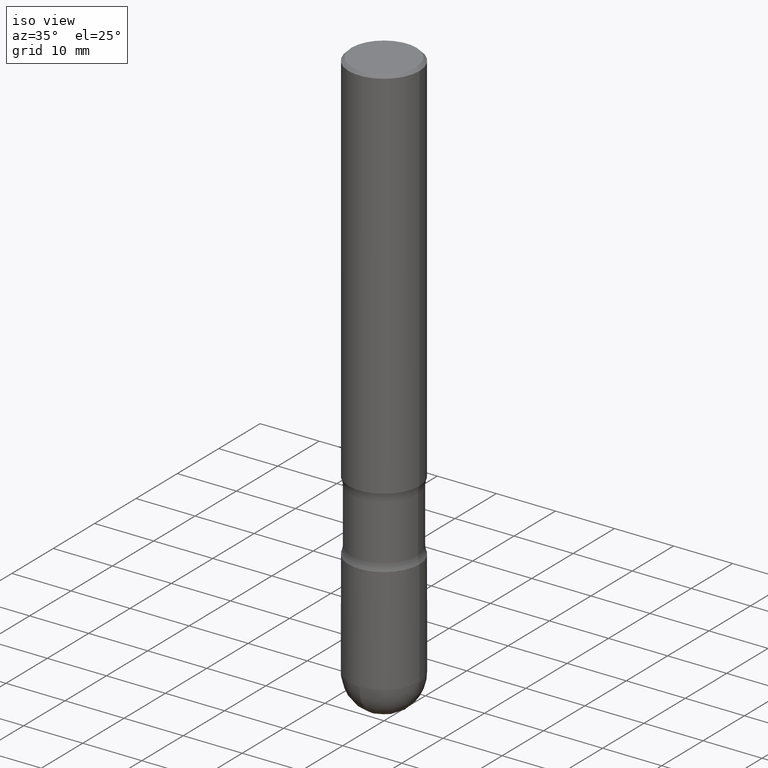
[diagram: clean part render]
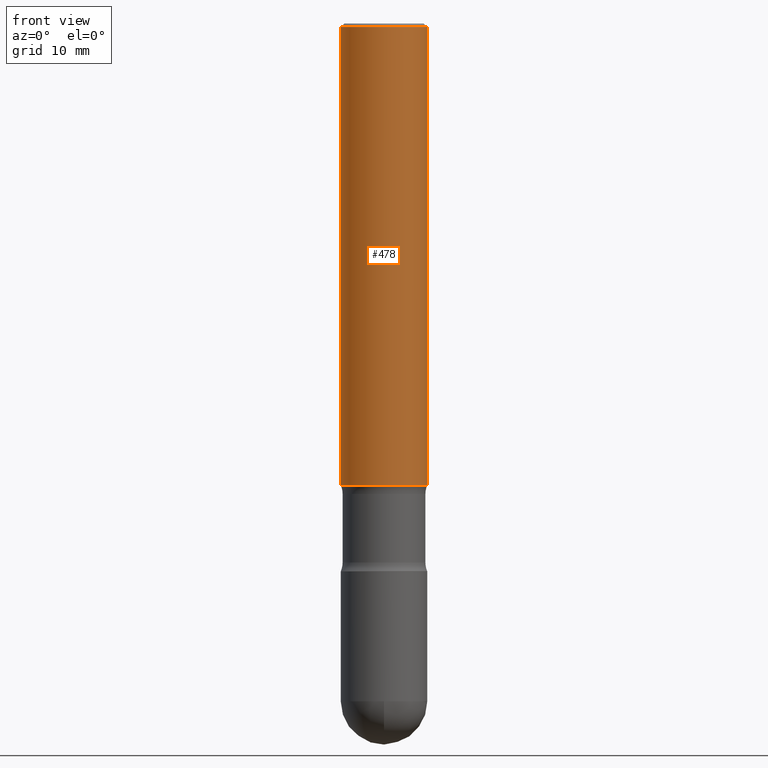
[diagram: tour spotlight — one face highlighted and labeled with its STEP entity id]
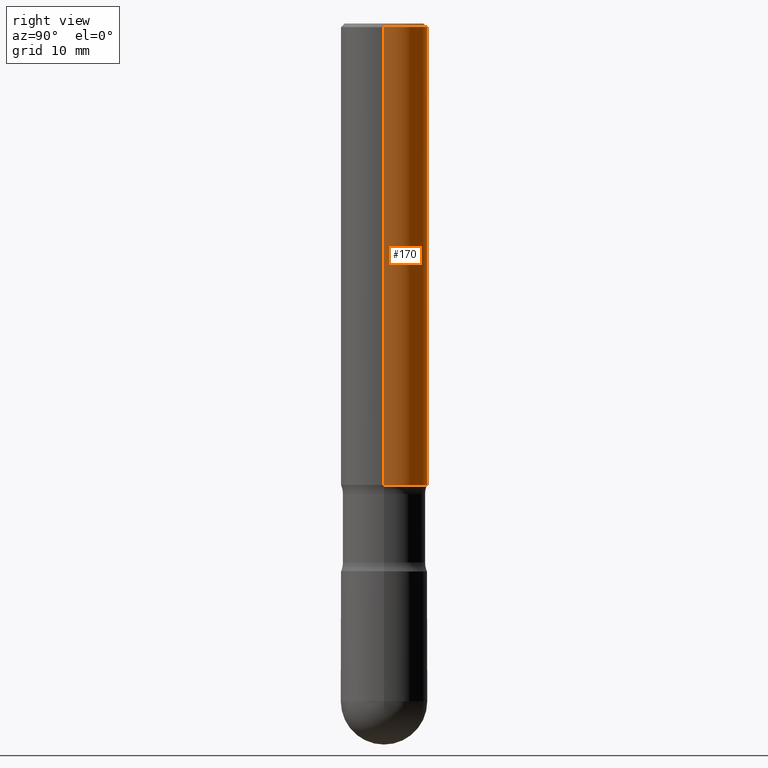
[diagram: tour spotlight — one face highlighted and labeled with its STEP entity id]
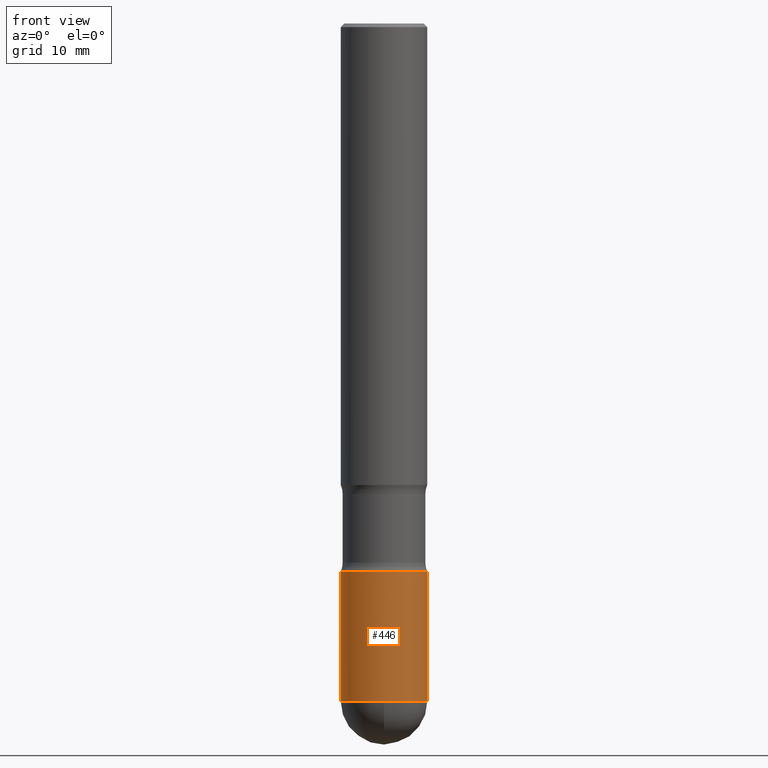
[diagram: tour spotlight — one face highlighted and labeled with its STEP entity id]
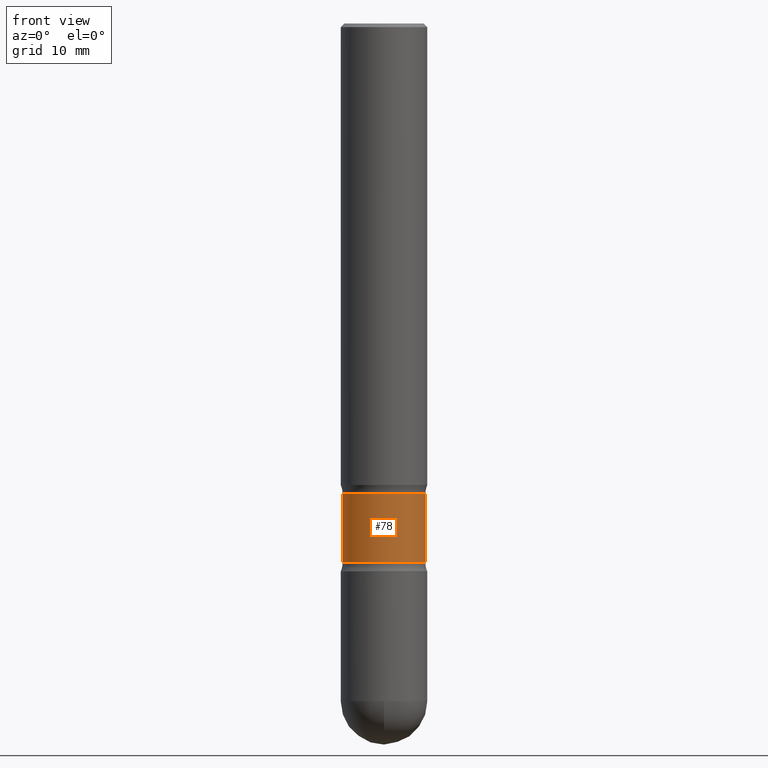
[diagram: tour spotlight — one face highlighted and labeled with its STEP entity id]
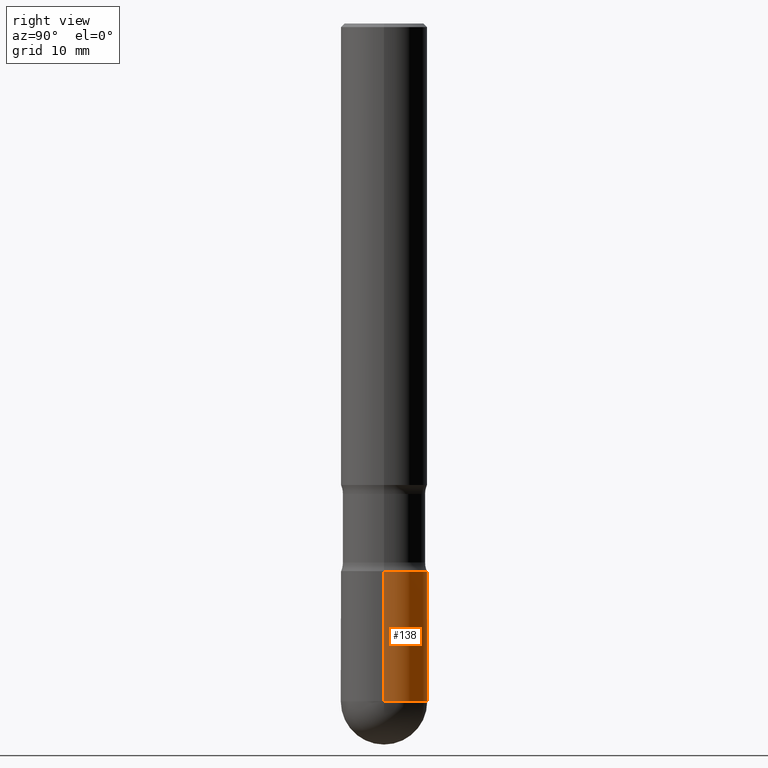
[diagram: tour spotlight — one face highlighted and labeled with its STEP entity id]
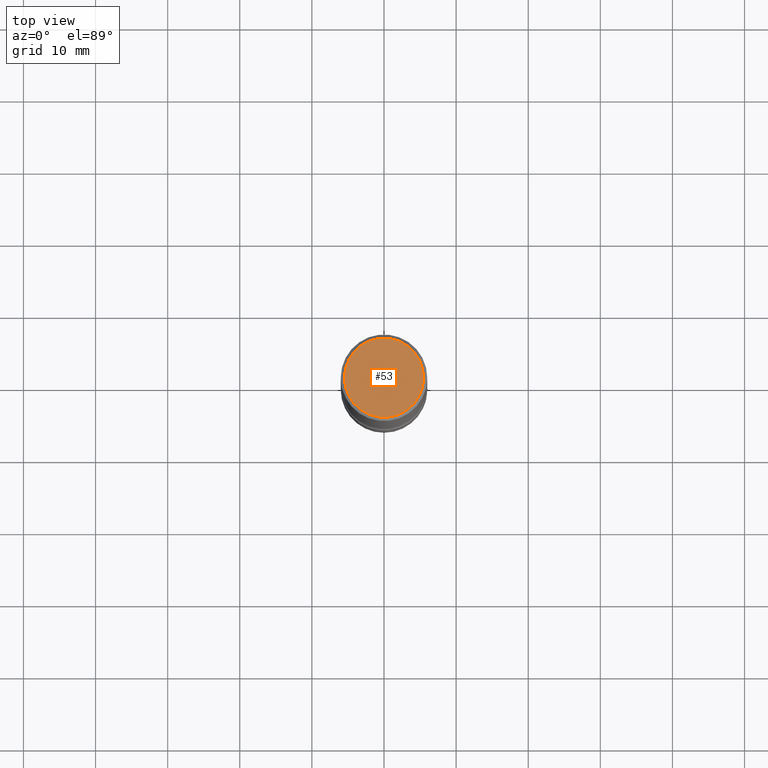
[diagram: tour spotlight — one face highlighted and labeled with its STEP entity id]
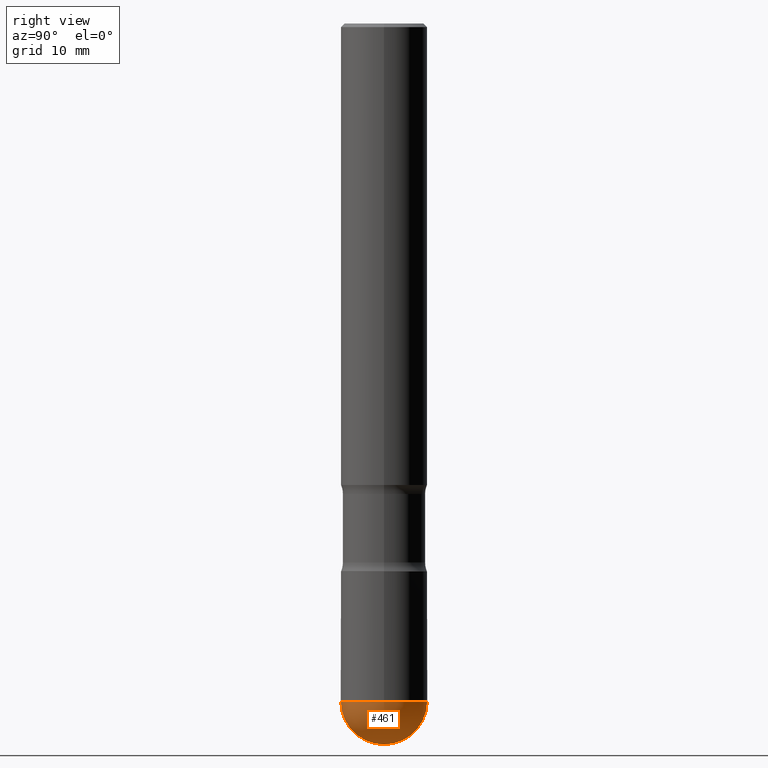
[diagram: tour spotlight — one face highlighted and labeled with its STEP entity id]
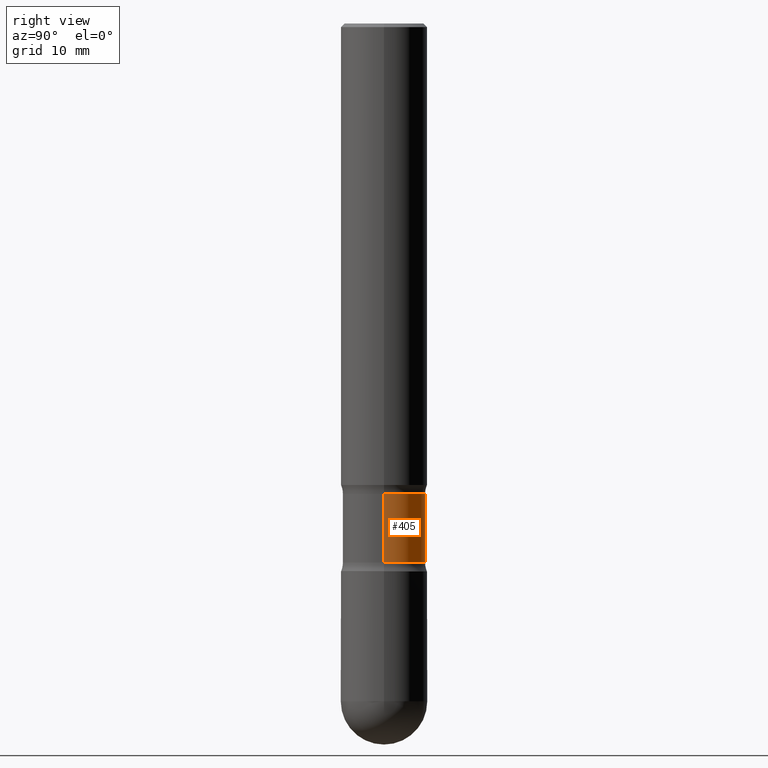
[diagram: tour spotlight — one face highlighted and labeled with its STEP entity id]
A machine part: a face-by-face anatomy tour. The part has 19 B-rep faces; the first image is the clean iso view, then the 8 largest visible faces are spotlighted one at a time (largest first), each with its STEP entity span.

Face 1 — front view, entity #478. In plain terms, the highlighted cylindrical surface (partial cylindrical patch) has radius 5.9995 mm, axis along (0, -0, -1).
Definition (entity closure, byte-faithful):
#2 = VERTEX_POINT ( 'NONE', #149 ) ;
#5 = VECTOR ( 'NONE', #270, 39.37007874015748143 ) ;
#39 = CARTESIAN_POINT ( 'NONE',  ( -0.2362000000000000210, -7.148109745013582758E-15, -2.519700000000001605 ) ) ;
#52 = ORIENTED_EDGE ( 'NONE', *, *, #472, .F. ) ;
#57 = VECTOR ( 'NONE', #142, 39.37007874015748143 ) ;
#104 = AXIS2_PLACEMENT_3D ( 'NONE', #154, #247, #116 ) ;
#116 = DIRECTION ( 'NONE',  ( -1.000000000000000000, 6.982962677686268288E-15, 0.000000000000000000 ) ) ;
#117 = CYLINDRICAL_SURFACE ( 'NONE', #104, 0.2361999999999998823 ) ;
#135 = VERTEX_POINT ( 'NONE', #399 ) ;
#140 = EDGE_CURVE ( 'NONE', #135, #2, #161, .T. ) ;
#142 = DIRECTION ( 'NONE',  ( 2.445468806185136877E-29, -3.491481338843145188E-15, -1.000000000000000000 ) ) ;
#146 = VERTEX_POINT ( 'NONE', #360 ) ;
#149 = CARTESIAN_POINT ( 'NONE',  ( -0.2361999999999997712, 1.579546157692630466E-15, -0.02000000000000033348 ) ) ;
#154 = CARTESIAN_POINT ( 'NONE',  ( 7.317087214986547114E-29, -1.044686131395257581E-14, -2.992100000000000204 ) ) ;
#157 = CARTESIAN_POINT ( 'NONE',  ( 6.161847750944692713E-29, -8.797485529483079283E-15, -2.519700000000001605 ) ) ;
#161 = CIRCLE ( 'NONE', #337, 0.2361999999999997712 ) ;
#205 = EDGE_CURVE ( 'NONE', #2, #222, #448, .T. ) ;
#222 = VERTEX_POINT ( 'NONE', #39 ) ;
#229 = LINE ( 'NONE', #534, #57 ) ;
#247 = DIRECTION ( 'NONE',  ( 2.445468806185136597E-29, -3.491481338843145583E-15, -1.000000000000000000 ) ) ;
#270 = DIRECTION ( 'NONE',  ( 2.445468806185136877E-29, -3.491481338843145188E-15, -1.000000000000000000 ) ) ;
#288 = EDGE_CURVE ( 'NONE', #135, #146, #229, .T. ) ;
#313 = DIRECTION ( 'NONE',  ( -1.000000000000000000, 6.982962677686266711E-15, 0.000000000000000000 ) ) ;
#315 = CARTESIAN_POINT ( 'NONE',  ( -0.2361999999999998823, -8.797485529483079283E-15, -2.992100000000000204 ) ) ;
#329 = FACE_OUTER_BOUND ( 'NONE', #459, .T. ) ;
#335 = DIRECTION ( 'NONE',  ( 2.445468806185136597E-29, -3.491481338843145583E-15, -1.000000000000000000 ) ) ;
#337 = AXIS2_PLACEMENT_3D ( 'NONE', #566, #445, #313 ) ;
#348 = CIRCLE ( 'NONE', #418, 0.2362000000000000210 ) ;
#360 = CARTESIAN_POINT ( 'NONE',  ( 0.2362000000000000766, -6.054107205203603214E-15, -2.519700000000001605 ) ) ;
#399 = CARTESIAN_POINT ( 'NONE',  ( 0.2361999999999997712, -1.690279253850498179E-15, -0.02000000000000033348 ) ) ;
#418 = AXIS2_PLACEMENT_3D ( 'NONE', #157, #335, #507 ) ;
#445 = DIRECTION ( 'NONE',  ( 2.445468806185136597E-29, -3.491481338843145583E-15, -1.000000000000000000 ) ) ;
#448 = LINE ( 'NONE', #315, #5 ) ;
#459 = EDGE_LOOP ( 'NONE', ( #542, #483, #535, #52 ) ) ;
#472 = EDGE_CURVE ( 'NONE', #146, #222, #348, .T. ) ;
#478 = ADVANCED_FACE ( 'NONE', ( #329 ), #117, .T. ) ;
#483 = ORIENTED_EDGE ( 'NONE', *, *, #140, .T. ) ;
#507 = DIRECTION ( 'NONE',  ( -1.000000000000000000, 6.982962677686268288E-15, 0.000000000000000000 ) ) ;
#534 = CARTESIAN_POINT ( 'NONE',  ( 0.2361999999999998823, -1.206731094102620931E-14, -2.992100000000000204 ) ) ;
#535 = ORIENTED_EDGE ( 'NONE', *, *, #205, .T. ) ;
#542 = ORIENTED_EDGE ( 'NONE', *, *, #288, .F. ) ;
#566 = CARTESIAN_POINT ( 'NONE',  ( 4.890937612370354609E-31, -6.982962677686407473E-17, -0.02000000000000033348 ) ) ;

Face 2 — right view, entity #170. In plain terms, the highlighted cylindrical surface (partial cylindrical patch) has radius 5.9995 mm, axis along (0, -0, -1).
Definition (entity closure, byte-faithful):
#2 = VERTEX_POINT ( 'NONE', #149 ) ;
#5 = VECTOR ( 'NONE', #270, 39.37007874015748143 ) ;
#8 = CARTESIAN_POINT ( 'NONE',  ( 4.890937612370354609E-31, -6.982962677686407473E-17, -0.02000000000000033348 ) ) ;
#12 = DIRECTION ( 'NONE',  ( 2.445468806185136597E-29, -3.491481338843145583E-15, -1.000000000000000000 ) ) ;
#17 = EDGE_LOOP ( 'NONE', ( #530, #527, #43, #444 ) ) ;
#34 = CIRCLE ( 'NONE', #504, 0.2362000000000000210 ) ;
#36 = CIRCLE ( 'NONE', #73, 0.2361999999999997712 ) ;
#39 = CARTESIAN_POINT ( 'NONE',  ( -0.2362000000000000210, -7.148109745013582758E-15, -2.519700000000001605 ) ) ;
#43 = ORIENTED_EDGE ( 'NONE', *, *, #103, .F. ) ;
#57 = VECTOR ( 'NONE', #142, 39.37007874015748143 ) ;
#73 = AXIS2_PLACEMENT_3D ( 'NONE', #8, #402, #439 ) ;
#103 = EDGE_CURVE ( 'NONE', #222, #146, #34, .T. ) ;
#130 = EDGE_CURVE ( 'NONE', #2, #135, #36, .T. ) ;
#135 = VERTEX_POINT ( 'NONE', #399 ) ;
#142 = DIRECTION ( 'NONE',  ( 2.445468806185136877E-29, -3.491481338843145188E-15, -1.000000000000000000 ) ) ;
#146 = VERTEX_POINT ( 'NONE', #360 ) ;
#149 = CARTESIAN_POINT ( 'NONE',  ( -0.2361999999999997712, 1.579546157692630466E-15, -0.02000000000000033348 ) ) ;
#167 = DIRECTION ( 'NONE',  ( 2.445468806185136597E-29, -3.491481338843145583E-15, -1.000000000000000000 ) ) ;
#170 = ADVANCED_FACE ( 'NONE', ( #452 ), #177, .T. ) ;
#177 = CYLINDRICAL_SURFACE ( 'NONE', #515, 0.2361999999999998823 ) ;
#194 = DIRECTION ( 'NONE',  ( -1.000000000000000000, 6.982962677686268288E-15, 0.000000000000000000 ) ) ;
#205 = EDGE_CURVE ( 'NONE', #2, #222, #448, .T. ) ;
#222 = VERTEX_POINT ( 'NONE', #39 ) ;
#229 = LINE ( 'NONE', #534, #57 ) ;
#270 = DIRECTION ( 'NONE',  ( 2.445468806185136877E-29, -3.491481338843145188E-15, -1.000000000000000000 ) ) ;
#288 = EDGE_CURVE ( 'NONE', #135, #146, #229, .T. ) ;
#292 = CARTESIAN_POINT ( 'NONE',  ( 6.161847750944692713E-29, -8.797485529483079283E-15, -2.519700000000001605 ) ) ;
#315 = CARTESIAN_POINT ( 'NONE',  ( -0.2361999999999998823, -8.797485529483079283E-15, -2.992100000000000204 ) ) ;
#344 = DIRECTION ( 'NONE',  ( -1.000000000000000000, 6.982962677686268288E-15, 0.000000000000000000 ) ) ;
#360 = CARTESIAN_POINT ( 'NONE',  ( 0.2362000000000000766, -6.054107205203603214E-15, -2.519700000000001605 ) ) ;
#399 = CARTESIAN_POINT ( 'NONE',  ( 0.2361999999999997712, -1.690279253850498179E-15, -0.02000000000000033348 ) ) ;
#402 = DIRECTION ( 'NONE',  ( 2.445468806185136597E-29, -3.491481338843145583E-15, -1.000000000000000000 ) ) ;
#439 = DIRECTION ( 'NONE',  ( -1.000000000000000000, 6.982962677686266711E-15, 0.000000000000000000 ) ) ;
#444 = ORIENTED_EDGE ( 'NONE', *, *, #205, .F. ) ;
#448 = LINE ( 'NONE', #315, #5 ) ;
#452 = FACE_OUTER_BOUND ( 'NONE', #17, .T. ) ;
#504 = AXIS2_PLACEMENT_3D ( 'NONE', #292, #167, #344 ) ;
#515 = AXIS2_PLACEMENT_3D ( 'NONE', #523, #12, #194 ) ;
#523 = CARTESIAN_POINT ( 'NONE',  ( 7.317087214986547114E-29, -1.044686131395257581E-14, -2.992100000000000204 ) ) ;
#527 = ORIENTED_EDGE ( 'NONE', *, *, #288, .T. ) ;
#530 = ORIENTED_EDGE ( 'NONE', *, *, #130, .T. ) ;
#534 = CARTESIAN_POINT ( 'NONE',  ( 0.2361999999999998823, -1.206731094102620931E-14, -2.992100000000000204 ) ) ;

Face 3 — front view, entity #446. In plain terms, the highlighted cylindrical surface (partial cylindrical patch) has radius 5.9995 mm, axis along (-0, 0, 1).
Definition (entity closure, byte-faithful):
#20 = EDGE_CURVE ( 'NONE', #107, #197, #332, .T. ) ;
#55 = DIRECTION ( 'NONE',  ( 1.000000000000000000, -6.982962677686264344E-15, 0.000000000000000000 ) ) ;
#71 = EDGE_CURVE ( 'NONE', #236, #107, #306, .T. ) ;
#75 = AXIS2_PLACEMENT_3D ( 'NONE', #471, #420, #552 ) ;
#85 = CARTESIAN_POINT ( 'NONE',  ( -0.2361999999999993827, 1.678301941865352253E-15, -1.161852468318205674E-29 ) ) ;
#96 = CARTESIAN_POINT ( 'NONE',  ( 0.2361999999999994382, -1.209623709842206760E-14, -2.992100000000000204 ) ) ;
#107 = VERTEX_POINT ( 'NONE', #514 ) ;
#115 = DIRECTION ( 'NONE',  ( -2.445468806185136877E-29, 3.491481338843145188E-15, 1.000000000000000000 ) ) ;
#124 = AXIS2_PLACEMENT_3D ( 'NONE', #541, #537, #55 ) ;
#125 = CARTESIAN_POINT ( 'NONE',  ( 9.050190957929953666E-29, -1.292127413879071357E-14, -3.700800000000000090 ) ) ;
#134 = CARTESIAN_POINT ( 'NONE',  ( -0.2361999999999992716, -1.000576578450629382E-14, -3.700800000000000090 ) ) ;
#144 = VERTEX_POINT ( 'NONE', #134 ) ;
#197 = VERTEX_POINT ( 'NONE', #96 ) ;
#236 = VERTEX_POINT ( 'NONE', #563 ) ;
#245 = EDGE_CURVE ( 'NONE', #144, #266, #401, .T. ) ;
#260 = DIRECTION ( 'NONE',  ( -2.445468806185136877E-29, 3.491481338843145188E-15, 1.000000000000000000 ) ) ;
#266 = VERTEX_POINT ( 'NONE', #565 ) ;
#275 = EDGE_LOOP ( 'NONE', ( #403, #319, #321, #340, #487 ) ) ;
#306 = CIRCLE ( 'NONE', #531, 0.2361999999999992716 ) ;
#318 = CYLINDRICAL_SURFACE ( 'NONE', #442, 0.2361999999999993827 ) ;
#319 = ORIENTED_EDGE ( 'NONE', *, *, #503, .T. ) ;
#320 = VECTOR ( 'NONE', #115, 39.37007874015748143 ) ;
#321 = ORIENTED_EDGE ( 'NONE', *, *, #71, .T. ) ;
#332 = LINE ( 'NONE', #414, #320 ) ;
#340 = ORIENTED_EDGE ( 'NONE', *, *, #20, .T. ) ;
#364 = CIRCLE ( 'NONE', #124, 0.2361999999999994382 ) ;
#388 = DIRECTION ( 'NONE',  ( -2.445468806185136597E-29, 3.491481338843145583E-15, 1.000000000000000000 ) ) ;
#401 = LINE ( 'NONE', #85, #564 ) ;
#403 = ORIENTED_EDGE ( 'NONE', *, *, #245, .F. ) ;
#408 = FACE_OUTER_BOUND ( 'NONE', #275, .T. ) ;
#414 = CARTESIAN_POINT ( 'NONE',  ( 0.2361999999999993827, -1.649375784469491792E-15, 1.151752954442997005E-29 ) ) ;
#420 = DIRECTION ( 'NONE',  ( -2.445468806185136597E-29, 3.491481338843145583E-15, 1.000000000000000000 ) ) ;
#437 = EDGE_CURVE ( 'NONE', #266, #197, #364, .T. ) ;
#442 = AXIS2_PLACEMENT_3D ( 'NONE', #498, #388, #517 ) ;
#446 = ADVANCED_FACE ( 'NONE', ( #408 ), #318, .T. ) ;
#471 = CARTESIAN_POINT ( 'NONE',  ( 9.050190957929953666E-29, -1.292127413879071357E-14, -3.700800000000000090 ) ) ;
#487 = ORIENTED_EDGE ( 'NONE', *, *, #437, .F. ) ;
#498 = CARTESIAN_POINT ( 'NONE',  ( 0.000000000000000000, 0.000000000000000000, 0.000000000000000000 ) ) ;
#503 = EDGE_CURVE ( 'NONE', #144, #236, #522, .T. ) ;
#514 = CARTESIAN_POINT ( 'NONE',  ( 0.2361999999999992716, -1.333344351084113885E-14, -3.700800000000000090 ) ) ;
#516 = DIRECTION ( 'NONE',  ( -2.445468806185136597E-29, 3.491481338843145583E-15, 1.000000000000000000 ) ) ;
#517 = DIRECTION ( 'NONE',  ( 1.000000000000000000, -6.982962677686265922E-15, 4.876176775795935793E-29 ) ) ;
#520 = DIRECTION ( 'NONE',  ( 1.000000000000000000, -6.982962677686269866E-15, 0.000000000000000000 ) ) ;
#522 = CIRCLE ( 'NONE', #75, 0.2361999999999992716 ) ;
#531 = AXIS2_PLACEMENT_3D ( 'NONE', #125, #516, #520 ) ;
#537 = DIRECTION ( 'NONE',  ( -2.445468806185136597E-29, 3.491481338843145583E-15, 1.000000000000000000 ) ) ;
#541 = CARTESIAN_POINT ( 'NONE',  ( 7.317087214986547114E-29, -1.044686131395257581E-14, -2.992100000000000204 ) ) ;
#552 = DIRECTION ( 'NONE',  ( 1.000000000000000000, -6.982962677686269866E-15, 0.000000000000000000 ) ) ;
#563 = CARTESIAN_POINT ( 'NONE',  ( -1.678301941865263506E-15, -0.2362000000000125666, -3.700799999999998757 ) ) ;
#564 = VECTOR ( 'NONE', #260, 39.37007874015748143 ) ;
#565 = CARTESIAN_POINT ( 'NONE',  ( -0.2361999999999994382, -1.000576578450629066E-14, -2.992100000000000204 ) ) ;

Face 4 — front view, entity #78. In plain terms, the highlighted cylindrical surface (partial cylindrical patch) has radius 5.7404 mm, axis along (0, -0, -1).
Definition (entity closure, byte-faithful):
#11 = ORIENTED_EDGE ( 'NONE', *, *, #33, .T. ) ;
#13 = VERTEX_POINT ( 'NONE', #278 ) ;
#25 = CARTESIAN_POINT ( 'NONE',  ( -0.2259999999999994513, -7.392012926791492320E-15, -2.569156647682591998 ) ) ;
#33 = EDGE_CURVE ( 'NONE', #453, #368, #186, .T. ) ;
#64 = VERTEX_POINT ( 'NONE', #393 ) ;
#74 = DIRECTION ( 'NONE',  ( -1.000000000000000000, 6.982962677686264344E-15, 0.000000000000000000 ) ) ;
#78 = ADVANCED_FACE ( 'NONE', ( #391 ), #164, .T. ) ;
#102 = ORIENTED_EDGE ( 'NONE', *, *, #553, .F. ) ;
#127 = CARTESIAN_POINT ( 'NONE',  ( 7.317087214986547114E-29, -1.044686131395257581E-14, -2.992100000000000204 ) ) ;
#136 = CARTESIAN_POINT ( 'NONE',  ( 7.196142525820281571E-29, -1.027418435148706833E-14, -2.942643352317408478 ) ) ;
#139 = AXIS2_PLACEMENT_3D ( 'NONE', #334, #199, #501 ) ;
#150 = AXIS2_PLACEMENT_3D ( 'NONE', #136, #305, #484 ) ;
#164 = CYLINDRICAL_SURFACE ( 'NONE', #432, 0.2259999999999994513 ) ;
#186 = CIRCLE ( 'NONE', #139, 0.2259999999999994513 ) ;
#199 = DIRECTION ( 'NONE',  ( 2.445468806185136597E-29, -3.491481338843145583E-15, -1.000000000000000000 ) ) ;
#211 = ORIENTED_EDGE ( 'NONE', *, *, #271, .F. ) ;
#214 = LINE ( 'NONE', #352, #322 ) ;
#218 = VECTOR ( 'NONE', #488, 39.37007874015748143 ) ;
#237 = CARTESIAN_POINT ( 'NONE',  ( 0.2259999999999994513, -1.199733386144893843E-14, -2.992100000000000204 ) ) ;
#271 = EDGE_CURVE ( 'NONE', #13, #64, #466, .T. ) ;
#278 = CARTESIAN_POINT ( 'NONE',  ( 0.2259999999999994791, -1.117264596921418701E-14, -2.942643352317408478 ) ) ;
#305 = DIRECTION ( 'NONE',  ( 2.445468806185136597E-29, -3.491481338843145583E-15, -1.000000000000000000 ) ) ;
#316 = EDGE_LOOP ( 'NONE', ( #102, #11, #411, #211 ) ) ;
#322 = VECTOR ( 'NONE', #390, 39.37007874015748143 ) ;
#334 = CARTESIAN_POINT ( 'NONE',  ( 6.282792440110956015E-29, -8.970162491948585188E-15, -2.569156647682591998 ) ) ;
#339 = EDGE_CURVE ( 'NONE', #368, #64, #214, .T. ) ;
#352 = CARTESIAN_POINT ( 'NONE',  ( -0.2259999999999994513, -8.868711748795482939E-15, -2.992100000000000204 ) ) ;
#353 = DIRECTION ( 'NONE',  ( 2.445468806185136597E-29, -3.491481338843145583E-15, -1.000000000000000000 ) ) ;
#366 = LINE ( 'NONE', #237, #218 ) ;
#368 = VERTEX_POINT ( 'NONE', #25 ) ;
#390 = DIRECTION ( 'NONE',  ( 2.445468806185136877E-29, -3.491481338843145188E-15, -1.000000000000000000 ) ) ;
#391 = FACE_OUTER_BOUND ( 'NONE', #316, .T. ) ;
#393 = CARTESIAN_POINT ( 'NONE',  ( -0.2259999999999994791, -8.696034786329975456E-15, -2.942643352317408478 ) ) ;
#411 = ORIENTED_EDGE ( 'NONE', *, *, #339, .T. ) ;
#415 = CARTESIAN_POINT ( 'NONE',  ( 0.2259999999999994513, -1.046928509800083188E-14, -2.569156647682591998 ) ) ;
#432 = AXIS2_PLACEMENT_3D ( 'NONE', #127, #353, #74 ) ;
#453 = VERTEX_POINT ( 'NONE', #415 ) ;
#466 = CIRCLE ( 'NONE', #150, 0.2259999999999994791 ) ;
#484 = DIRECTION ( 'NONE',  ( -1.000000000000000000, 6.982962677686267499E-15, 0.000000000000000000 ) ) ;
#488 = DIRECTION ( 'NONE',  ( 2.445468806185136877E-29, -3.491481338843145188E-15, -1.000000000000000000 ) ) ;
#501 = DIRECTION ( 'NONE',  ( -1.000000000000000000, 6.982962677686268288E-15, 0.000000000000000000 ) ) ;
#553 = EDGE_CURVE ( 'NONE', #453, #13, #366, .T. ) ;

Face 5 — right view, entity #138. In plain terms, the highlighted cylindrical surface (partial cylindrical patch) has radius 5.9995 mm, axis along (-0, 0, 1).
Definition (entity closure, byte-faithful):
#20 = EDGE_CURVE ( 'NONE', #107, #197, #332, .T. ) ;
#29 = DIRECTION ( 'NONE',  ( -2.445468806185136597E-29, 3.491481338843145583E-15, 1.000000000000000000 ) ) ;
#54 = DIRECTION ( 'NONE',  ( -2.445468806185136597E-29, 3.491481338843145583E-15, 1.000000000000000000 ) ) ;
#59 = CARTESIAN_POINT ( 'NONE',  ( 1.649375784469583694E-15, 0.2361999999999866706, -3.700800000000000978 ) ) ;
#72 = DIRECTION ( 'NONE',  ( -2.445468806185136597E-29, 3.491481338843145583E-15, 1.000000000000000000 ) ) ;
#85 = CARTESIAN_POINT ( 'NONE',  ( -0.2361999999999993827, 1.678301941865352253E-15, -1.161852468318205674E-29 ) ) ;
#89 = FACE_OUTER_BOUND ( 'NONE', #458, .T. ) ;
#96 = CARTESIAN_POINT ( 'NONE',  ( 0.2361999999999994382, -1.209623709842206760E-14, -2.992100000000000204 ) ) ;
#107 = VERTEX_POINT ( 'NONE', #514 ) ;
#113 = AXIS2_PLACEMENT_3D ( 'NONE', #317, #185, #182 ) ;
#115 = DIRECTION ( 'NONE',  ( -2.445468806185136877E-29, 3.491481338843145188E-15, 1.000000000000000000 ) ) ;
#129 = EDGE_CURVE ( 'NONE', #195, #144, #505, .T. ) ;
#134 = CARTESIAN_POINT ( 'NONE',  ( -0.2361999999999992716, -1.000576578450629382E-14, -3.700800000000000090 ) ) ;
#138 = ADVANCED_FACE ( 'NONE', ( #89 ), #529, .T. ) ;
#144 = VERTEX_POINT ( 'NONE', #134 ) ;
#173 = CARTESIAN_POINT ( 'NONE',  ( 9.050190957929953666E-29, -1.292127413879071357E-14, -3.700800000000000090 ) ) ;
#174 = CARTESIAN_POINT ( 'NONE',  ( 9.050190957929953666E-29, -1.292127413879071357E-14, -3.700800000000000090 ) ) ;
#182 = DIRECTION ( 'NONE',  ( 1.000000000000000000, -6.982962677686265922E-15, 4.876176775795935793E-29 ) ) ;
#185 = DIRECTION ( 'NONE',  ( -2.445468806185136597E-29, 3.491481338843145583E-15, 1.000000000000000000 ) ) ;
#193 = ORIENTED_EDGE ( 'NONE', *, *, #129, .T. ) ;
#195 = VERTEX_POINT ( 'NONE', #59 ) ;
#197 = VERTEX_POINT ( 'NONE', #96 ) ;
#245 = EDGE_CURVE ( 'NONE', #144, #266, #401, .T. ) ;
#253 = AXIS2_PLACEMENT_3D ( 'NONE', #173, #54, #481 ) ;
#254 = DIRECTION ( 'NONE',  ( 1.000000000000000000, -6.982962677686264344E-15, 0.000000000000000000 ) ) ;
#260 = DIRECTION ( 'NONE',  ( -2.445468806185136877E-29, 3.491481338843145188E-15, 1.000000000000000000 ) ) ;
#265 = ORIENTED_EDGE ( 'NONE', *, *, #245, .T. ) ;
#266 = VERTEX_POINT ( 'NONE', #565 ) ;
#310 = AXIS2_PLACEMENT_3D ( 'NONE', #174, #29, #345 ) ;
#317 = CARTESIAN_POINT ( 'NONE',  ( 0.000000000000000000, 0.000000000000000000, 0.000000000000000000 ) ) ;
#320 = VECTOR ( 'NONE', #115, 39.37007874015748143 ) ;
#332 = LINE ( 'NONE', #414, #320 ) ;
#345 = DIRECTION ( 'NONE',  ( 1.000000000000000000, -6.982962677686269866E-15, 0.000000000000000000 ) ) ;
#362 = CIRCLE ( 'NONE', #433, 0.2361999999999994382 ) ;
#382 = EDGE_CURVE ( 'NONE', #197, #266, #362, .T. ) ;
#385 = CARTESIAN_POINT ( 'NONE',  ( 7.317087214986547114E-29, -1.044686131395257581E-14, -2.992100000000000204 ) ) ;
#401 = LINE ( 'NONE', #85, #564 ) ;
#410 = ORIENTED_EDGE ( 'NONE', *, *, #496, .T. ) ;
#414 = CARTESIAN_POINT ( 'NONE',  ( 0.2361999999999993827, -1.649375784469491792E-15, 1.151752954442997005E-29 ) ) ;
#433 = AXIS2_PLACEMENT_3D ( 'NONE', #385, #72, #254 ) ;
#458 = EDGE_LOOP ( 'NONE', ( #193, #265, #532, #480, #410 ) ) ;
#470 = CIRCLE ( 'NONE', #310, 0.2361999999999992716 ) ;
#480 = ORIENTED_EDGE ( 'NONE', *, *, #20, .F. ) ;
#481 = DIRECTION ( 'NONE',  ( 1.000000000000000000, -6.982962677686269866E-15, 0.000000000000000000 ) ) ;
#496 = EDGE_CURVE ( 'NONE', #107, #195, #470, .T. ) ;
#505 = CIRCLE ( 'NONE', #253, 0.2361999999999992716 ) ;
#514 = CARTESIAN_POINT ( 'NONE',  ( 0.2361999999999992716, -1.333344351084113885E-14, -3.700800000000000090 ) ) ;
#529 = CYLINDRICAL_SURFACE ( 'NONE', #113, 0.2361999999999993827 ) ;
#532 = ORIENTED_EDGE ( 'NONE', *, *, #382, .F. ) ;
#564 = VECTOR ( 'NONE', #260, 39.37007874015748143 ) ;
#565 = CARTESIAN_POINT ( 'NONE',  ( -0.2361999999999994382, -1.000576578450629066E-14, -2.992100000000000204 ) ) ;

Face 6 — top view, entity #53. In plain terms, the highlighted planar face has unit normal (-0, 0, 1).
Definition (entity closure, byte-faithful):
#15 = CARTESIAN_POINT ( 'NONE',  ( 0.000000000000000000, 0.000000000000000000, 0.000000000000000000 ) ) ;
#27 = EDGE_LOOP ( 'NONE', ( #491, #493 ) ) ;
#28 = EDGE_CURVE ( 'NONE', #417, #359, #392, .T. ) ;
#32 = CARTESIAN_POINT ( 'NONE',  ( 1.509716530915768548E-15, 0.2161999999999996980, -7.527240092128368218E-16 ) ) ;
#35 = DIRECTION ( 'NONE',  ( -2.438088387897960049E-29, 3.491481338843145188E-15, 1.000000000000000000 ) ) ;
#44 = AXIS2_PLACEMENT_3D ( 'NONE', #15, #423, #68 ) ;
#53 = ADVANCED_FACE ( 'NONE', ( #219 ), #354, .T. ) ;
#68 = DIRECTION ( 'NONE',  ( -1.000000000000000000, 6.982962677686266711E-15, -4.876176775795936353E-29 ) ) ;
#99 = DIRECTION ( 'NONE',  ( -1.000000000000000000, 6.982962677686266711E-15, -4.876176775795936353E-29 ) ) ;
#119 = CARTESIAN_POINT ( 'NONE',  ( 0.2161999999999996980, -1.586759460484350410E-15, 1.082724460448618591E-29 ) ) ;
#165 = EDGE_CURVE ( 'NONE', #359, #417, #455, .T. ) ;
#209 = AXIS2_PLACEMENT_3D ( 'NONE', #267, #489, #99 ) ;
#217 = DIRECTION ( 'NONE',  ( 1.000000000000000000, -6.982962677686265922E-15, 4.876176775795935793E-29 ) ) ;
#219 = FACE_OUTER_BOUND ( 'NONE', #27, .T. ) ;
#267 = CARTESIAN_POINT ( 'NONE',  ( 0.000000000000000000, 0.000000000000000000, 0.000000000000000000 ) ) ;
#354 = PLANE ( 'NONE',  #557 ) ;
#359 = VERTEX_POINT ( 'NONE', #119 ) ;
#392 = CIRCLE ( 'NONE', #44, 0.2161999999999996980 ) ;
#417 = VERTEX_POINT ( 'NONE', #474 ) ;
#423 = DIRECTION ( 'NONE',  ( 2.445468806185136597E-29, -3.491481338843145583E-15, -1.000000000000000000 ) ) ;
#455 = CIRCLE ( 'NONE', #209, 0.2161999999999996980 ) ;
#474 = CARTESIAN_POINT ( 'NONE',  ( -0.2161999999999996980, 1.509716530915768746E-15, -1.054229418927079915E-29 ) ) ;
#489 = DIRECTION ( 'NONE',  ( 2.445468806185136597E-29, -3.491481338843145583E-15, -1.000000000000000000 ) ) ;
#491 = ORIENTED_EDGE ( 'NONE', *, *, #28, .F. ) ;
#493 = ORIENTED_EDGE ( 'NONE', *, *, #165, .F. ) ;
#557 = AXIS2_PLACEMENT_3D ( 'NONE', #32, #35, #217 ) ;

Face 7 — right view, entity #461. In plain terms, the highlighted spherical surface has radius 5.9995 mm.
Definition (entity closure, byte-faithful):
#10 = EDGE_CURVE ( 'NONE', #262, #236, #176, .T. ) ;
#19 = AXIS2_PLACEMENT_3D ( 'NONE', #108, #377, #248 ) ;
#21 = ORIENTED_EDGE ( 'NONE', *, *, #496, .F. ) ;
#29 = DIRECTION ( 'NONE',  ( -2.445468806185136597E-29, 3.491481338843145583E-15, 1.000000000000000000 ) ) ;
#59 = CARTESIAN_POINT ( 'NONE',  ( 1.649375784469583694E-15, 0.2361999999999866706, -3.700800000000000978 ) ) ;
#71 = EDGE_CURVE ( 'NONE', #236, #107, #306, .T. ) ;
#107 = VERTEX_POINT ( 'NONE', #514 ) ;
#108 = CARTESIAN_POINT ( 'NONE',  ( 9.029991930179535488E-29, -1.295020029618657502E-14, -3.700800000000000090 ) ) ;
#125 = CARTESIAN_POINT ( 'NONE',  ( 9.050190957929953666E-29, -1.292127413879071357E-14, -3.700800000000000090 ) ) ;
#132 = ORIENTED_EDGE ( 'NONE', *, *, #10, .F. ) ;
#141 = AXIS2_PLACEMENT_3D ( 'NONE', #331, #464, #294 ) ;
#156 = CARTESIAN_POINT ( 'NONE',  ( 9.029991930179535488E-29, -1.295020029618657502E-14, -3.700800000000000090 ) ) ;
#174 = CARTESIAN_POINT ( 'NONE',  ( 9.050190957929953666E-29, -1.292127413879071357E-14, -3.700800000000000090 ) ) ;
#176 = CIRCLE ( 'NONE', #495, 0.2361999999999999655 ) ;
#181 = ORIENTED_EDGE ( 'NONE', *, *, #413, .T. ) ;
#188 = CIRCLE ( 'NONE', #141, 0.2361999999999999655 ) ;
#195 = VERTEX_POINT ( 'NONE', #59 ) ;
#200 = FACE_OUTER_BOUND ( 'NONE', #447, .T. ) ;
#236 = VERTEX_POINT ( 'NONE', #563 ) ;
#242 = DIRECTION ( 'NONE',  ( -1.000000000000000000, 7.105427357601001070E-15, -4.926315508542082329E-29 ) ) ;
#248 = DIRECTION ( 'NONE',  ( 6.982962677686265922E-15, 1.000000000000000000, -4.626330217890370125E-15 ) ) ;
#262 = VERTEX_POINT ( 'NONE', #528 ) ;
#294 = DIRECTION ( 'NONE',  ( 6.982962677686265922E-15, 1.000000000000000000, 0.000000000000000000 ) ) ;
#304 = ORIENTED_EDGE ( 'NONE', *, *, #71, .F. ) ;
#306 = CIRCLE ( 'NONE', #531, 0.2361999999999992716 ) ;
#310 = AXIS2_PLACEMENT_3D ( 'NONE', #174, #29, #345 ) ;
#331 = CARTESIAN_POINT ( 'NONE',  ( 9.029991930179535488E-29, -1.295020029618657502E-14, -3.700800000000000090 ) ) ;
#345 = DIRECTION ( 'NONE',  ( 1.000000000000000000, -6.982962677686269866E-15, 0.000000000000000000 ) ) ;
#373 = SPHERICAL_SURFACE ( 'NONE', #19, 0.2361999999999999655 ) ;
#377 = DIRECTION ( 'NONE',  ( -1.000000000000000000, 6.982962677686265922E-15, -4.883557194083112340E-29 ) ) ;
#413 = EDGE_CURVE ( 'NONE', #262, #195, #188, .T. ) ;
#447 = EDGE_LOOP ( 'NONE', ( #132, #181, #21, #304 ) ) ;
#461 = ADVANCED_FACE ( 'NONE', ( #200 ), #373, .T. ) ;
#464 = DIRECTION ( 'NONE',  ( 1.000000000000000000, -6.982962677686265922E-15, 4.883557194083112340E-29 ) ) ;
#470 = CIRCLE ( 'NONE', #310, 0.2361999999999992716 ) ;
#495 = AXIS2_PLACEMENT_3D ( 'NONE', #156, #242, #499 ) ;
#496 = EDGE_CURVE ( 'NONE', #107, #195, #470, .T. ) ;
#499 = DIRECTION ( 'NONE',  ( -7.105427357601001070E-15, -1.000000000000000000, 0.000000000000000000 ) ) ;
#514 = CARTESIAN_POINT ( 'NONE',  ( 0.2361999999999992716, -1.333344351084113885E-14, -3.700800000000000090 ) ) ;
#516 = DIRECTION ( 'NONE',  ( -2.445468806185136597E-29, 3.491481338843145583E-15, 1.000000000000000000 ) ) ;
#520 = DIRECTION ( 'NONE',  ( 1.000000000000000000, -6.982962677686269866E-15, 0.000000000000000000 ) ) ;
#528 = CARTESIAN_POINT ( 'NONE',  ( 9.617711176075674020E-29, -1.376042510972339572E-14, -3.937000000000000277 ) ) ;
#531 = AXIS2_PLACEMENT_3D ( 'NONE', #125, #516, #520 ) ;
#563 = CARTESIAN_POINT ( 'NONE',  ( -1.678301941865263506E-15, -0.2362000000000125666, -3.700799999999998757 ) ) ;

Face 8 — right view, entity #405. In plain terms, the highlighted cylindrical surface (partial cylindrical patch) has radius 5.7404 mm, axis along (0, -0, -1).
Definition (entity closure, byte-faithful):
#13 = VERTEX_POINT ( 'NONE', #278 ) ;
#18 = AXIS2_PLACEMENT_3D ( 'NONE', #548, #502, #206 ) ;
#24 = EDGE_CURVE ( 'NONE', #64, #13, #65, .T. ) ;
#25 = CARTESIAN_POINT ( 'NONE',  ( -0.2259999999999994513, -7.392012926791492320E-15, -2.569156647682591998 ) ) ;
#64 = VERTEX_POINT ( 'NONE', #393 ) ;
#65 = CIRCLE ( 'NONE', #18, 0.2259999999999994791 ) ;
#100 = ORIENTED_EDGE ( 'NONE', *, *, #553, .T. ) ;
#109 = CARTESIAN_POINT ( 'NONE',  ( 7.317087214986547114E-29, -1.044686131395257581E-14, -2.992100000000000204 ) ) ;
#172 = CIRCLE ( 'NONE', #308, 0.2259999999999994513 ) ;
#183 = EDGE_LOOP ( 'NONE', ( #277, #100, #412, #324 ) ) ;
#206 = DIRECTION ( 'NONE',  ( -1.000000000000000000, 6.982962677686267499E-15, 0.000000000000000000 ) ) ;
#214 = LINE ( 'NONE', #352, #322 ) ;
#218 = VECTOR ( 'NONE', #488, 39.37007874015748143 ) ;
#221 = AXIS2_PLACEMENT_3D ( 'NONE', #109, #323, #279 ) ;
#237 = CARTESIAN_POINT ( 'NONE',  ( 0.2259999999999994513, -1.199733386144893843E-14, -2.992100000000000204 ) ) ;
#249 = CYLINDRICAL_SURFACE ( 'NONE', #221, 0.2259999999999994513 ) ;
#277 = ORIENTED_EDGE ( 'NONE', *, *, #333, .T. ) ;
#278 = CARTESIAN_POINT ( 'NONE',  ( 0.2259999999999994791, -1.117264596921418701E-14, -2.942643352317408478 ) ) ;
#279 = DIRECTION ( 'NONE',  ( -1.000000000000000000, 6.982962677686264344E-15, 0.000000000000000000 ) ) ;
#290 = CARTESIAN_POINT ( 'NONE',  ( 6.282792440110956015E-29, -8.970162491948585188E-15, -2.569156647682591998 ) ) ;
#308 = AXIS2_PLACEMENT_3D ( 'NONE', #290, #554, #389 ) ;
#322 = VECTOR ( 'NONE', #390, 39.37007874015748143 ) ;
#323 = DIRECTION ( 'NONE',  ( 2.445468806185136597E-29, -3.491481338843145583E-15, -1.000000000000000000 ) ) ;
#324 = ORIENTED_EDGE ( 'NONE', *, *, #339, .F. ) ;
#333 = EDGE_CURVE ( 'NONE', #368, #453, #172, .T. ) ;
#339 = EDGE_CURVE ( 'NONE', #368, #64, #214, .T. ) ;
#352 = CARTESIAN_POINT ( 'NONE',  ( -0.2259999999999994513, -8.868711748795482939E-15, -2.992100000000000204 ) ) ;
#366 = LINE ( 'NONE', #237, #218 ) ;
#368 = VERTEX_POINT ( 'NONE', #25 ) ;
#389 = DIRECTION ( 'NONE',  ( -1.000000000000000000, 6.982962677686268288E-15, 0.000000000000000000 ) ) ;
#390 = DIRECTION ( 'NONE',  ( 2.445468806185136877E-29, -3.491481338843145188E-15, -1.000000000000000000 ) ) ;
#393 = CARTESIAN_POINT ( 'NONE',  ( -0.2259999999999994791, -8.696034786329975456E-15, -2.942643352317408478 ) ) ;
#405 = ADVANCED_FACE ( 'NONE', ( #467 ), #249, .T. ) ;
#412 = ORIENTED_EDGE ( 'NONE', *, *, #24, .F. ) ;
#415 = CARTESIAN_POINT ( 'NONE',  ( 0.2259999999999994513, -1.046928509800083188E-14, -2.569156647682591998 ) ) ;
#453 = VERTEX_POINT ( 'NONE', #415 ) ;
#467 = FACE_OUTER_BOUND ( 'NONE', #183, .T. ) ;
#488 = DIRECTION ( 'NONE',  ( 2.445468806185136877E-29, -3.491481338843145188E-15, -1.000000000000000000 ) ) ;
#502 = DIRECTION ( 'NONE',  ( 2.445468806185136597E-29, -3.491481338843145583E-15, -1.000000000000000000 ) ) ;
#548 = CARTESIAN_POINT ( 'NONE',  ( 7.196142525820281571E-29, -1.027418435148706833E-14, -2.942643352317408478 ) ) ;
#553 = EDGE_CURVE ( 'NONE', #453, #13, #366, .T. ) ;
#554 = DIRECTION ( 'NONE',  ( 2.445468806185136597E-29, -3.491481338843145583E-15, -1.000000000000000000 ) ) ;